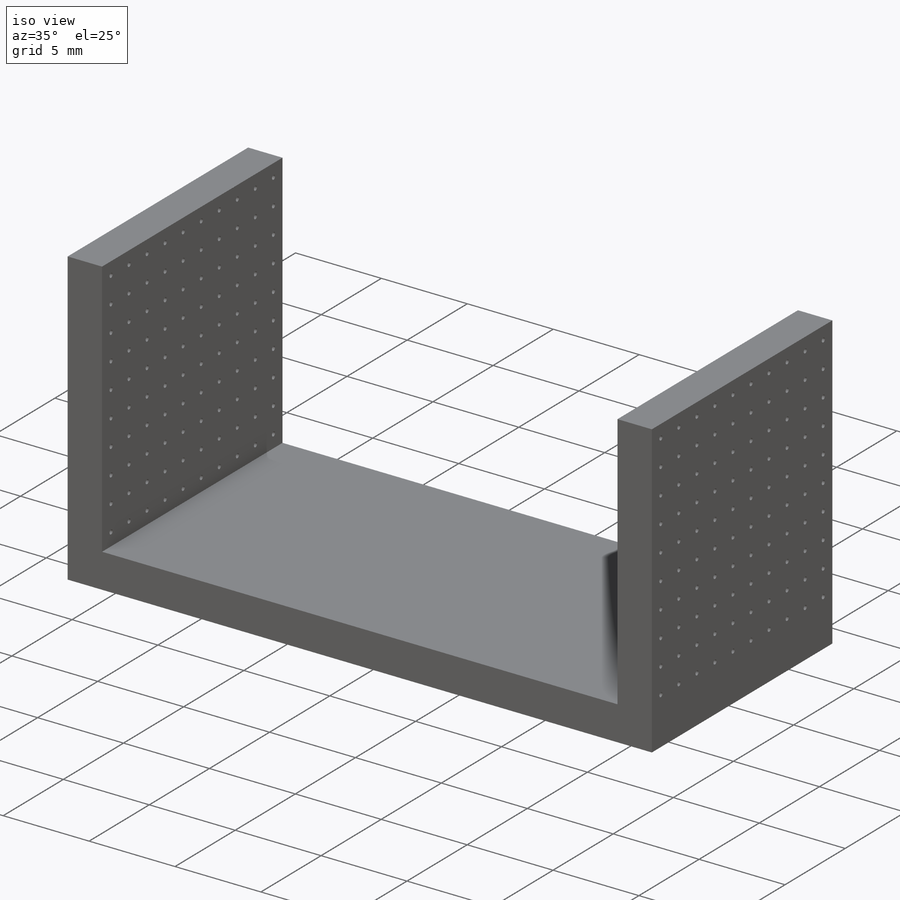
[diagram: iso view]
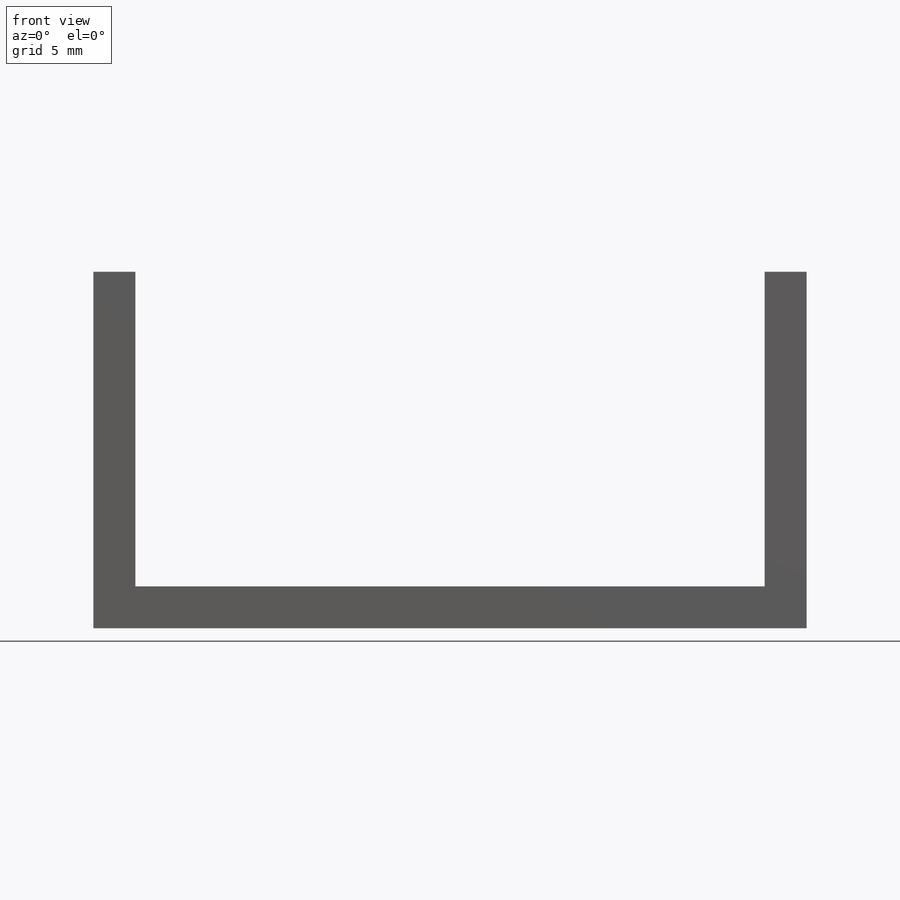
[diagram: front view]
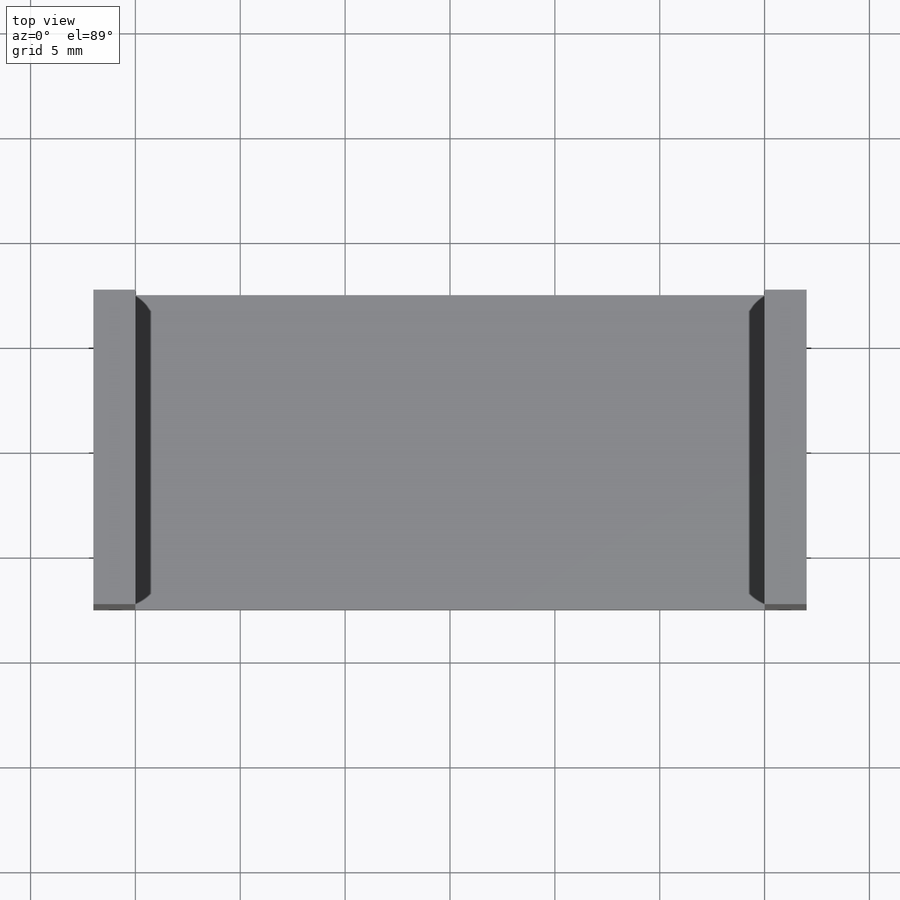
[diagram: top view]
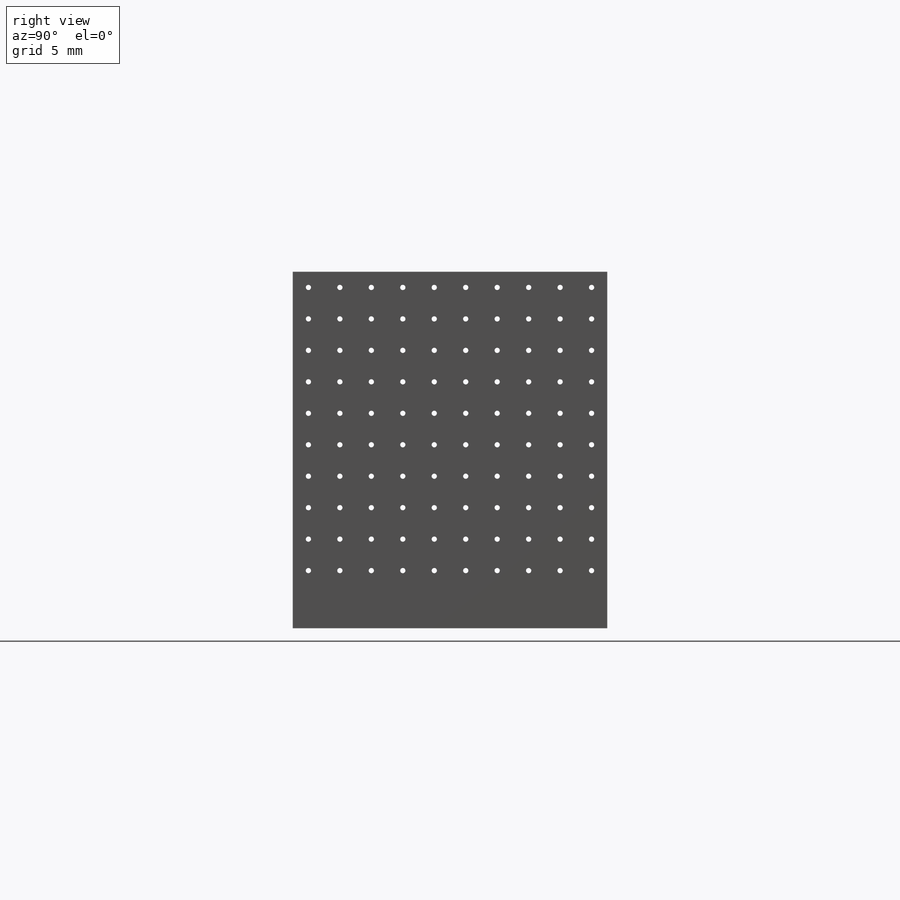
[diagram: right view]
SOLIDWORKS PART (.sldprt)
format: sldprt  version: not decoded by parser v0  size: 355,328 bytes
history: native  units: mm
features: sketch x3, cut_extrude x2, material x1, extrude x1, pattern_linear x1 (+13 scaffold rows collapsed)
feature tree (21):
  scaffold x13  (default folders/planes/origin — collapsed)
  material  "Material <not specified>"
  sketch  "Sketch1"  dims[D1=34.0mm D2=17.0mm]
  extrude  "Boss-Extrude1"  Depth=7.5mm
  sketch  "Sketch2"  dims[D1=2.0mm D2=2.0mm]
  cut_extrude  "Cut-Extrude1"  [1 undecoded]
  sketch  "Sketch3"  dims[D3=0.25mm D1=0.75mm D2=0.75mm]
  cut_extrude  "Cut-Extrude2"  [1 undecoded]
  pattern_linear  "LPattern1"  Count1=10 Count2=10 Spacing1=1.5mm Spacing2=1.5mm
decode coverage: 5 of 7 modeling features carry decoded parameters
note: 2 parameter values undecoded
note: suppression state not decoded; provenance and decode notes live in map.json
